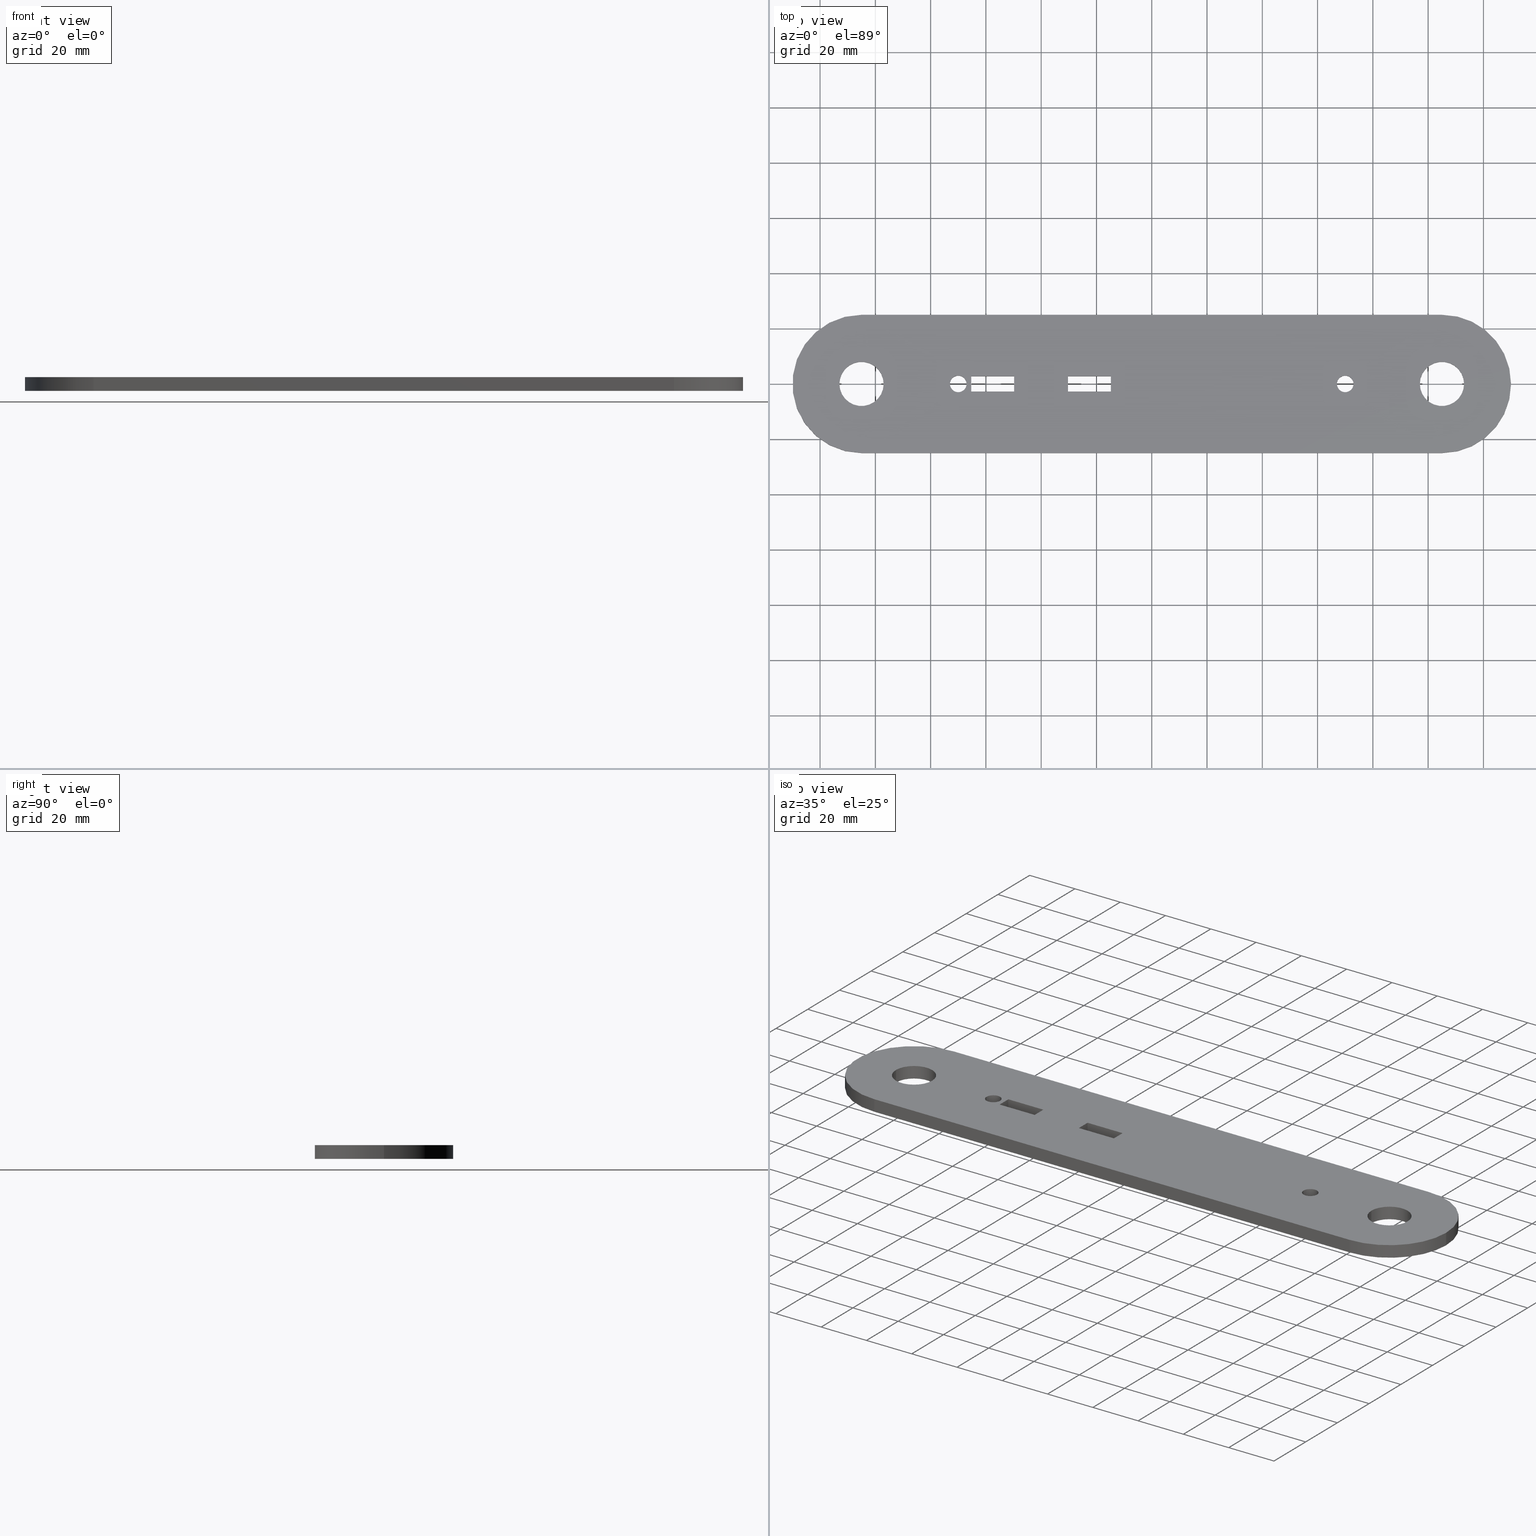
[diagram: canonical four-view strip — front | top / right | iso, engineering-drawing reading convention]
A machine part, canonical four-view strip (front | top / right | iso — engineering-drawing reading convention). The complete STEP part file that produces these views, byte-faithful:
ISO-10303-21;
HEADER;
FILE_DESCRIPTION (( 'STEP AP203' ),
    '1' );
FILE_NAME ('3927-55-10_REV_.step',
    '2026-02-22T20:40:41',
    ( '' ),
    ( '' ),
    'SwSTEP 2.0',
    'SolidWorks 2025',
    '' );
FILE_SCHEMA (( 'CONFIG_CONTROL_DESIGN' ));
ENDSEC;

DATA;
#1 = PERSON_AND_ORGANIZATION ( #477, #213 ) ;
#2 = CARTESIAN_POINT ( 'NONE',  ( -112.9999999999999858, 9.797174393178841435E-16, -5.000000000000000000 ) ) ;
#3 = EDGE_CURVE ( 'NONE', #608, #346, #713, .T. ) ;
#4 = AXIS2_PLACEMENT_3D ( 'NONE', #198, #385, #831 ) ;
#5 = ORIENTED_EDGE ( 'NONE', *, *, #736, .T. ) ;
#6 = APPLICATION_PROTOCOL_DEFINITION ( 'international standard', 'config_control_design', 1994, #58 ) ;
#7 = CIRCLE ( 'NONE', #648, 3.000000000000002665 ) ;
#8 = VECTOR ( 'NONE', #13, 1000.000000000000000 ) ;
#9 = LINE ( 'NONE', #656, #22 ) ;
#10 = LOCAL_TIME ( 7, 40, 41.00000000000000000, #172 ) ;
#11 = ADVANCED_FACE ( 'NONE', ( #57, #126, #342, #535, #64, #783, #836 ), #641, .F. ) ;
#12 = VERTEX_POINT ( 'NONE', #840 ) ;
#13 = DIRECTION ( 'NONE',  ( 1.000000000000000000, 1.817329355785226926E-16, 0.000000000000000000 ) ) ;
#14 = FACE_OUTER_BOUND ( 'NONE', #701, .T. ) ;
#15 = ORIENTED_EDGE ( 'NONE', *, *, #465, .T. ) ;
#16 = DIRECTION ( 'NONE',  ( 0.000000000000000000, 0.000000000000000000, 1.000000000000000000 ) ) ;
#17 = DIRECTION ( 'NONE',  ( 1.000000000000000000, 0.000000000000000000, 0.000000000000000000 ) ) ;
#18 = EDGE_LOOP ( 'NONE', ( #74, #272 ) ) ;
#19 = EDGE_LOOP ( 'NONE', ( #311, #85, #637, #142 ) ) ;
#20 = DIRECTION ( 'NONE',  ( 0.000000000000000000, 0.000000000000000000, 1.000000000000000000 ) ) ;
#21 = AXIS2_PLACEMENT_3D ( 'NONE', #695, #320, #313 ) ;
#22 = VECTOR ( 'NONE', #205, 1000.000000000000000 ) ;
#23 = EDGE_CURVE ( 'NONE', #406, #346, #163, .T. ) ;
#24 = DIRECTION ( 'NONE',  ( 1.000000000000000000, 0.000000000000000000, -0.000000000000000000 ) ) ;
#25 = EDGE_LOOP ( 'NONE', ( #546, #688, #211, #280 ) ) ;
#26 = CALENDAR_DATE ( 2026, 23, 2 ) ;
#27 = DIRECTION ( 'NONE',  ( 1.000000000000000000, 0.000000000000000000, 0.000000000000000000 ) ) ;
#28 = DIRECTION ( 'NONE',  ( 1.000000000000000000, 0.000000000000000000, 0.000000000000000000 ) ) ;
#29 = EDGE_LOOP ( 'NONE', ( #353, #709, #150, #506 ) ) ;
#30 = PERSON_AND_ORGANIZATION_ROLE ( 'classification_officer' ) ;
#31 = DIRECTION ( 'NONE',  ( 1.000000000000000000, 0.000000000000000000, 0.000000000000000000 ) ) ;
#32 = CARTESIAN_POINT ( 'NONE',  ( -30.29999999999999361, -2.749999999999998668, 0.000000000000000000 ) ) ;
#33 = EDGE_CURVE ( 'NONE', #829, #69, #796, .T. ) ;
#34 = EDGE_LOOP ( 'NONE', ( #291, #379, #304, #665 ) ) ;
#35 = FACE_BOUND ( 'NONE', #754, .T. ) ;
#36 = AXIS2_PLACEMENT_3D ( 'NONE', #193, #779, #199 ) ;
#37 = LINE ( 'NONE', #549, #536 ) ;
#38 = AXIS2_PLACEMENT_3D ( 'NONE', #97, #20, #106 ) ;
#39 = ORIENTED_EDGE ( 'NONE', *, *, #575, .T. ) ;
#40 = CC_DESIGN_DATE_AND_TIME_ASSIGNMENT ( #260, #138, ( #818 ) ) ;
#41 = CARTESIAN_POINT ( 'NONE',  ( 104.9999999999999858, 3.857637417314161584E-14, -5.000000000000000000 ) ) ;
#42 = PLANE ( 'NONE',  #50 ) ;
#43 = ORIENTED_EDGE ( 'NONE', *, *, #314, .T. ) ;
#44 = LINE ( 'NONE', #833, #634 ) ;
#45 = EDGE_CURVE ( 'NONE', #740, #184, #63, .T. ) ;
#46 = CARTESIAN_POINT ( 'NONE',  ( -65.29999999999999716, -2.749999999999998224, 0.000000000000000000 ) ) ;
#47 = CARTESIAN_POINT ( 'NONE',  ( -49.79999999999999716, 2.750000000000001332, 0.000000000000000000 ) ) ;
#48 = DIRECTION ( 'NONE',  ( -0.000000000000000000, -0.000000000000000000, -1.000000000000000000 ) ) ;
#49 = EDGE_CURVE ( 'NONE', #595, #448, #433, .T. ) ;
#50 = AXIS2_PLACEMENT_3D ( 'NONE', #482, #417, #94 ) ;
#51 = AXIS2_PLACEMENT_3D ( 'NONE', #140, #734, #408 ) ;
#52 = VERTEX_POINT ( 'NONE', #233 ) ;
#53 = FACE_OUTER_BOUND ( 'NONE', #34, .T. ) ;
#54 = DIRECTION ( 'NONE',  ( 0.000000000000000000, 0.000000000000000000, 1.000000000000000000 ) ) ;
#55 = LINE ( 'NONE', #47, #594 ) ;
#56 = CARTESIAN_POINT ( 'NONE',  ( 104.9999999999999858, 3.857637417314161584E-14, 0.000000000000000000 ) ) ;
#57 = FACE_BOUND ( 'NONE', #774, .T. ) ;
#58 = APPLICATION_CONTEXT ( 'configuration controlled 3d designs of mechanical parts and assemblies' ) ;
#59 = ADVANCED_FACE ( 'NONE', ( #430 ), #42, .F. ) ;
#60 = ORIENTED_EDGE ( 'NONE', *, *, #427, .F. ) ;
#61 = CYLINDRICAL_SURFACE ( 'NONE', #334, 3.000000000000002665 ) ;
#62 = CARTESIAN_POINT ( 'NONE',  ( -30.29999999999999361, -2.749999999999998668, -5.000000000000000000 ) ) ;
#63 = CIRCLE ( 'NONE', #418, 8.000000000000007105 ) ;
#64 = FACE_BOUND ( 'NONE', #803, .T. ) ;
#65 = AXIS2_PLACEMENT_3D ( 'NONE', #372, #127, #384 ) ;
#66 = ORIENTED_EDGE ( 'NONE', *, *, #310, .T. ) ;
#67 = CARTESIAN_POINT ( 'NONE',  ( -96.99999999999997158, 0.000000000000000000, -5.000000000000000000 ) ) ;
#68 = CARTESIAN_POINT ( 'NONE',  ( -104.9999999999999858, -25.00000000000004263, 0.000000000000000000 ) ) ;
#69 = VERTEX_POINT ( 'NONE', #491 ) ;
#70 = VERTEX_POINT ( 'NONE', #752 ) ;
#71 = CALENDAR_DATE ( 2026, 23, 2 ) ;
#72 = DIRECTION ( 'NONE',  ( -0.000000000000000000, -0.000000000000000000, 1.000000000000000000 ) ) ;
#73 = EDGE_CURVE ( 'NONE', #696, #759, #37, .T. ) ;
#74 = ORIENTED_EDGE ( 'NONE', *, *, #236, .T. ) ;
#75 =( LENGTH_UNIT ( ) NAMED_UNIT ( * ) SI_UNIT ( .MILLI., .METRE. ) );
#76 = DIRECTION ( 'NONE',  ( -0.000000000000000000, -0.000000000000000000, -1.000000000000000000 ) ) ;
#77 = VECTOR ( 'NONE', #513, 1000.000000000000000 ) ;
#78 = AXIS2_PLACEMENT_3D ( 'NONE', #273, #264, #586 ) ;
#79 = LOCAL_TIME ( 7, 40, 41.00000000000000000, #325 ) ;
#80 = CARTESIAN_POINT ( 'NONE',  ( 72.99999999999998579, 0.000000000000000000, -5.000000000000000000 ) ) ;
#81 = ORIENTED_EDGE ( 'NONE', *, *, #326, .F. ) ;
#82 = DATE_AND_TIME ( #71, #826 ) ;
#83 = CARTESIAN_POINT ( 'NONE',  ( -69.99999999999998579, 0.000000000000000000, -5.000000000000000000 ) ) ;
#84 = ORIENTED_EDGE ( 'NONE', *, *, #523, .T. ) ;
#85 = ORIENTED_EDGE ( 'NONE', *, *, #660, .F. ) ;
#86 = ADVANCED_FACE ( 'NONE', ( #230 ), #98, .T. ) ;
#87 = DIRECTION ( 'NONE',  ( 0.000000000000000000, 1.000000000000000000, 0.000000000000000000 ) ) ;
#88 = DIRECTION ( 'NONE',  ( -0.000000000000000000, -0.000000000000000000, 1.000000000000000000 ) ) ;
#89 = ORIENTED_EDGE ( 'NONE', *, *, #705, .T. ) ;
#90 = CALENDAR_DATE ( 2026, 23, 2 ) ;
#91 = FACE_BOUND ( 'NONE', #668, .T. ) ;
#92 = AXIS2_PLACEMENT_3D ( 'NONE', #739, #544, #540 ) ;
#93 = VECTOR ( 'NONE', #666, 1000.000000000000000 ) ;
#94 = DIRECTION ( 'NONE',  ( 0.000000000000000000, -0.000000000000000000, 1.000000000000000000 ) ) ;
#95 = LOCAL_TIME ( 7, 40, 41.00000000000000000, #609 ) ;
#96 = ORIENTED_EDGE ( 'NONE', *, *, #660, .T. ) ;
#97 = CARTESIAN_POINT ( 'NONE',  ( 69.99999999999998579, 0.000000000000000000, 0.000000000000000000 ) ) ;
#98 = PLANE ( 'NONE',  #527 ) ;
#99 = EDGE_CURVE ( 'NONE', #158, #131, #730, .T. ) ;
#100 = ORIENTED_EDGE ( 'NONE', *, *, #402, .F. ) ;
#101 = DATE_AND_TIME ( #26, #95 ) ;
#102 = DIRECTION ( 'NONE',  ( -1.000000000000000000, -1.817329355785226926E-16, 0.000000000000000000 ) ) ;
#103 = CARTESIAN_POINT ( 'NONE',  ( -104.9999999999999858, 0.000000000000000000, 0.000000000000000000 ) ) ;
#104 = EDGE_CURVE ( 'NONE', #244, #515, #672, .T. ) ;
#105 = ORIENTED_EDGE ( 'NONE', *, *, #502, .F. ) ;
#106 = DIRECTION ( 'NONE',  ( 1.000000000000000000, 0.000000000000000000, 0.000000000000000000 ) ) ;
#107 = AXIS2_PLACEMENT_3D ( 'NONE', #521, #843, #145 ) ;
#108 = DIRECTION ( 'NONE',  ( -1.000000000000000000, -2.797941090285172713E-17, 0.000000000000000000 ) ) ;
#109 = VECTOR ( 'NONE', #182, 1000.000000000000000 ) ;
#110 = ORIENTED_EDGE ( 'NONE', *, *, #209, .F. ) ;
#111 = CARTESIAN_POINT ( 'NONE',  ( -30.29999999999999361, -2.749999999999998668, 0.000000000000000000 ) ) ;
#112 = DIRECTION ( 'NONE',  ( 1.000000000000000000, 2.797941090285172713E-17, 0.000000000000000000 ) ) ;
#113 = DIRECTION ( 'NONE',  ( -1.000000000000000000, -1.817329355785226926E-16, -0.000000000000000000 ) ) ;
#114 = CARTESIAN_POINT ( 'NONE',  ( -104.9999999999999858, 25.00000000000004263, -5.000000000000000000 ) ) ;
#115 = APPLICATION_CONTEXT ( 'configuration controlled 3d designs of mechanical parts and assemblies' ) ;
#116 = ORIENTED_EDGE ( 'NONE', *, *, #45, .T. ) ;
#117 = FACE_OUTER_BOUND ( 'NONE', #456, .T. ) ;
#118 = DIRECTION ( 'NONE',  ( 1.000000000000000000, 0.000000000000000000, 0.000000000000000000 ) ) ;
#119 = CIRCLE ( 'NONE', #593, 8.000000000000007105 ) ;
#120 = AXIS2_PLACEMENT_3D ( 'NONE', #670, #429, #102 ) ;
#121 = ADVANCED_BREP_SHAPE_REPRESENTATION ( '3927-55-10_REV_', ( #686, #674 ), #298 ) ;
#122 = ORIENTED_EDGE ( 'NONE', *, *, #209, .T. ) ;
#123 = PLANE ( 'NONE',  #474 ) ;
#124 = FACE_OUTER_BOUND ( 'NONE', #597, .T. ) ;
#125 = ADVANCED_FACE ( 'NONE', ( #802 ), #611, .F. ) ;
#126 = FACE_BOUND ( 'NONE', #18, .T. ) ;
#127 = DIRECTION ( 'NONE',  ( -1.000000000000000000, 0.000000000000000000, 0.000000000000000000 ) ) ;
#128 = DIRECTION ( 'NONE',  ( -0.000000000000000000, -1.000000000000000000, -0.000000000000000000 ) ) ;
#129 = CC_DESIGN_DATE_AND_TIME_ASSIGNMENT ( #101, #283, ( #689 ) ) ;
#130 = ORIENTED_EDGE ( 'NONE', *, *, #23, .T. ) ;
#131 = VERTEX_POINT ( 'NONE', #355 ) ;
#132 = DIRECTION ( 'NONE',  ( 1.000000000000000000, 0.000000000000000000, 0.000000000000000000 ) ) ;
#133 = CARTESIAN_POINT ( 'NONE',  ( -65.29999999999999716, -2.749999999999998224, 0.000000000000000000 ) ) ;
#134 = AXIS2_PLACEMENT_3D ( 'NONE', #583, #699, #118 ) ;
#135 = ORIENTED_EDGE ( 'NONE', *, *, #465, .F. ) ;
#136 = VECTOR ( 'NONE', #827, 1000.000000000000000 ) ;
#137 = VERTEX_POINT ( 'NONE', #556 ) ;
#138 = DATE_TIME_ROLE ( 'creation_date' ) ;
#139 = EDGE_CURVE ( 'NONE', #608, #651, #646, .T. ) ;
#140 = CARTESIAN_POINT ( 'NONE',  ( -104.9999999999999858, 0.000000000000000000, -5.000000000000000000 ) ) ;
#141 = VERTEX_POINT ( 'NONE', #303 ) ;
#142 = ORIENTED_EDGE ( 'NONE', *, *, #599, .T. ) ;
#143 = COORDINATED_UNIVERSAL_TIME_OFFSET ( 10, 0, .AHEAD. ) ;
#144 = EDGE_CURVE ( 'NONE', #696, #557, #819, .T. ) ;
#145 = DIRECTION ( 'NONE',  ( 1.000000000000000000, 0.000000000000000000, 0.000000000000000000 ) ) ;
#146 = EDGE_LOOP ( 'NONE', ( #161, #300, #631, #96 ) ) ;
#147 = CARTESIAN_POINT ( 'NONE',  ( 112.9999999999999858, 3.857637417314161584E-14, 0.000000000000000000 ) ) ;
#148 = CARTESIAN_POINT ( 'NONE',  ( 104.9999999999999858, 3.857637417314161584E-14, -5.000000000000000000 ) ) ;
#149 = VECTOR ( 'NONE', #76, 1000.000000000000000 ) ;
#150 = ORIENTED_EDGE ( 'NONE', *, *, #640, .F. ) ;
#151 =( NAMED_UNIT ( * ) PLANE_ANGLE_UNIT ( ) SI_UNIT ( $, .RADIAN. ) );
#152 = AXIS2_PLACEMENT_3D ( 'NONE', #148, #202, #531 ) ;
#153 = CARTESIAN_POINT ( 'NONE',  ( -30.29999999999999361, 2.750000000000001332, 0.000000000000000000 ) ) ;
#154 = ADVANCED_FACE ( 'NONE', ( #224 ), #235, .F. ) ;
#155 = ORIENTED_EDGE ( 'NONE', *, *, #410, .F. ) ;
#156 = DIRECTION ( 'NONE',  ( 1.000000000000000000, 0.000000000000000000, 0.000000000000000000 ) ) ;
#157 = ORIENTED_EDGE ( 'NONE', *, *, #287, .T. ) ;
#158 = VERTEX_POINT ( 'NONE', #744 ) ;
#159 = FACE_OUTER_BOUND ( 'NONE', #259, .T. ) ;
#160 = LINE ( 'NONE', #497, #281 ) ;
#161 = ORIENTED_EDGE ( 'NONE', *, *, #243, .T. ) ;
#162 = FACE_OUTER_BOUND ( 'NONE', #812, .T. ) ;
#163 = CIRCLE ( 'NONE', #717, 3.000000000000002665 ) ;
#164 = EDGE_CURVE ( 'NONE', #759, #328, #160, .T. ) ;
#165 = AXIS2_PLACEMENT_3D ( 'NONE', #111, #572, #308 ) ;
#166 = CARTESIAN_POINT ( 'NONE',  ( -104.9999999999999858, -25.00000000000004263, -5.000000000000000000 ) ) ;
#167 = VERTEX_POINT ( 'NONE', #166 ) ;
#168 = APPROVAL_STATUS ( 'not_yet_approved' ) ;
#169 = CARTESIAN_POINT ( 'NONE',  ( -65.29999999999999716, -2.749999999999998224, -5.000000000000000000 ) ) ;
#170 = DIRECTION ( 'NONE',  ( 1.817329355785226926E-16, -1.000000000000000000, 0.000000000000000000 ) ) ;
#171 = VERTEX_POINT ( 'NONE', #615 ) ;
#172 = COORDINATED_UNIVERSAL_TIME_OFFSET ( 10, 0, .AHEAD. ) ;
#173 = DIRECTION ( 'NONE',  ( 0.000000000000000000, 0.000000000000000000, 1.000000000000000000 ) ) ;
#174 = CARTESIAN_POINT ( 'NONE',  ( -65.29999999999999716, 2.750000000000000888, 0.000000000000000000 ) ) ;
#175 = ORIENTED_EDGE ( 'NONE', *, *, #790, .T. ) ;
#176 = LINE ( 'NONE', #761, #254 ) ;
#177 = AXIS2_PLACEMENT_3D ( 'NONE', #682, #485, #28 ) ;
#178 = LINE ( 'NONE', #423, #659 ) ;
#179 = APPROVAL_PERSON_ORGANIZATION ( #781, #580, #716 ) ;
#180 = EDGE_CURVE ( 'NONE', #343, #574, #178, .T. ) ;
#181 = ORIENTED_EDGE ( 'NONE', *, *, #356, .F. ) ;
#182 = DIRECTION ( 'NONE',  ( 0.000000000000000000, 0.000000000000000000, 1.000000000000000000 ) ) ;
#183 = CARTESIAN_POINT ( 'NONE',  ( -30.29999999999999361, 2.750000000000001332, -5.000000000000000000 ) ) ;
#184 = VERTEX_POINT ( 'NONE', #366 ) ;
#185 = DIRECTION ( 'NONE',  ( -0.000000000000000000, -0.000000000000000000, -1.000000000000000000 ) ) ;
#186 = DIRECTION ( 'NONE',  ( 0.000000000000000000, 0.000000000000000000, 1.000000000000000000 ) ) ;
#187 = ORIENTED_EDGE ( 'NONE', *, *, #575, .F. ) ;
#188 = PLANE ( 'NONE',  #758 ) ;
#189 = EDGE_CURVE ( 'NONE', #12, #52, #678, .T. ) ;
#190 = LINE ( 'NONE', #62, #550 ) ;
#191 = CIRCLE ( 'NONE', #373, 8.000000000000007105 ) ;
#192 = VECTOR ( 'NONE', #468, 1000.000000000000000 ) ;
#193 = CARTESIAN_POINT ( 'NONE',  ( -69.99999999999998579, 0.000000000000000000, 0.000000000000000000 ) ) ;
#194 = DIRECTION ( 'NONE',  ( 0.000000000000000000, 0.000000000000000000, 1.000000000000000000 ) ) ;
#195 = DIRECTION ( 'NONE',  ( 0.000000000000000000, 0.000000000000000000, 1.000000000000000000 ) ) ;
#196 = EDGE_CURVE ( 'NONE', #806, #392, #517, .T. ) ;
#197 = VERTEX_POINT ( 'NONE', #834 ) ;
#198 = CARTESIAN_POINT ( 'NONE',  ( -104.9999999999999858, 0.000000000000000000, -5.000000000000000000 ) ) ;
#199 = DIRECTION ( 'NONE',  ( 1.000000000000000000, 0.000000000000000000, 0.000000000000000000 ) ) ;
#200 = EDGE_CURVE ( 'NONE', #399, #137, #359, .T. ) ;
#201 = APPROVAL_STATUS ( 'not_yet_approved' ) ;
#202 = DIRECTION ( 'NONE',  ( 0.000000000000000000, 0.000000000000000000, 1.000000000000000000 ) ) ;
#203 = VECTOR ( 'NONE', #252, 1000.000000000000000 ) ;
#204 = ORIENTED_EDGE ( 'NONE', *, *, #625, .T. ) ;
#205 = DIRECTION ( 'NONE',  ( 0.000000000000000000, 0.000000000000000000, 1.000000000000000000 ) ) ;
#206 = LINE ( 'NONE', #393, #551 ) ;
#207 = CARTESIAN_POINT ( 'NONE',  ( -104.9999999999999858, 0.000000000000000000, -5.000000000000000000 ) ) ;
#208 = LINE ( 'NONE', #533, #241 ) ;
#209 = EDGE_CURVE ( 'NONE', #798, #841, #191, .T. ) ;
#210 = VECTOR ( 'NONE', #128, 1000.000000000000000 ) ;
#211 = ORIENTED_EDGE ( 'NONE', *, *, #364, .F. ) ;
#212 = VECTOR ( 'NONE', #72, 1000.000000000000000 ) ;
#213 = ORGANIZATION ( 'UNSPECIFIED', 'UNSPECIFIED', '' ) ;
#214 = CARTESIAN_POINT ( 'NONE',  ( -30.29999999999999361, -2.749999999999998668, 0.000000000000000000 ) ) ;
#215 = ORIENTED_EDGE ( 'NONE', *, *, #49, .F. ) ;
#216 = APPROVAL ( #168, 'UNSPECIFIED' ) ;
#217 = ORIENTED_EDGE ( 'NONE', *, *, #479, .T. ) ;
#218 = DATE_AND_TIME ( #733, #405 ) ;
#219 = DIRECTION ( 'NONE',  ( -0.000000000000000000, -0.000000000000000000, 1.000000000000000000 ) ) ;
#220 = DIRECTION ( 'NONE',  ( 0.000000000000000000, 0.000000000000000000, 1.000000000000000000 ) ) ;
#221 = EDGE_CURVE ( 'NONE', #737, #595, #769, .T. ) ;
#222 = ORIENTED_EDGE ( 'NONE', *, *, #824, .T. ) ;
#223 = CARTESIAN_POINT ( 'NONE',  ( 104.9999999999999858, 3.857637417314161584E-14, 0.000000000000000000 ) ) ;
#224 = FACE_OUTER_BOUND ( 'NONE', #19, .T. ) ;
#225 = ORIENTED_EDGE ( 'NONE', *, *, #377, .T. ) ;
#226 = PERSON_AND_ORGANIZATION_ROLE ( 'creator' ) ;
#227 = CIRCLE ( 'NONE', #700, 25.00000000000004974 ) ;
#228 = CARTESIAN_POINT ( 'NONE',  ( -72.99999999999998579, 3.673940397442076138E-16, -5.000000000000000000 ) ) ;
#229 = CIRCLE ( 'NONE', #786, 3.000000000000002665 ) ;
#230 = FACE_OUTER_BOUND ( 'NONE', #471, .T. ) ;
#231 = ORIENTED_EDGE ( 'NONE', *, *, #671, .T. ) ;
#232 = CARTESIAN_POINT ( 'NONE',  ( -65.29999999999999716, 2.750000000000000888, 0.000000000000000000 ) ) ;
#233 = CARTESIAN_POINT ( 'NONE',  ( -14.80000000000000071, -2.749999999999998668, -5.000000000000000000 ) ) ;
#234 = FACE_BOUND ( 'NONE', #276, .T. ) ;
#235 = PLANE ( 'NONE',  #321 ) ;
#236 = EDGE_CURVE ( 'NONE', #651, #608, #499, .T. ) ;
#237 = EDGE_LOOP ( 'NONE', ( #225, #566 ) ) ;
#238 = FACE_OUTER_BOUND ( 'NONE', #667, .T. ) ;
#239 = VECTOR ( 'NONE', #88, 1000.000000000000000 ) ;
#240 = LINE ( 'NONE', #762, #266 ) ;
#241 = VECTOR ( 'NONE', #473, 1000.000000000000000 ) ;
#242 = APPROVAL_PERSON_ORGANIZATION ( #669, #216, #292 ) ;
#243 = EDGE_CURVE ( 'NONE', #574, #413, #446, .T. ) ;
#244 = VERTEX_POINT ( 'NONE', #133 ) ;
#245 = CARTESIAN_POINT ( 'NONE',  ( -14.80000000000000071, -2.749999999999998668, 0.000000000000000000 ) ) ;
#246 = DIRECTION ( 'NONE',  ( 1.000000000000000000, 0.000000000000000000, 0.000000000000000000 ) ) ;
#247 = LINE ( 'NONE', #837, #487 ) ;
#248 = DIRECTION ( 'NONE',  ( 0.000000000000000000, 0.000000000000000000, 1.000000000000000000 ) ) ;
#249 = ORIENTED_EDGE ( 'NONE', *, *, #45, .F. ) ;
#250 = DIRECTION ( 'NONE',  ( -0.000000000000000000, -0.000000000000000000, -1.000000000000000000 ) ) ;
#251 = EDGE_CURVE ( 'NONE', #443, #562, #822, .T. ) ;
#252 = DIRECTION ( 'NONE',  ( 0.000000000000000000, 0.000000000000000000, 1.000000000000000000 ) ) ;
#253 = AXIS2_PLACEMENT_3D ( 'NONE', #103, #349, #426 ) ;
#254 = VECTOR ( 'NONE', #767, 1000.000000000000000 ) ;
#255 = EDGE_LOOP ( 'NONE', ( #428, #363, #721, #204 ) ) ;
#256 = CARTESIAN_POINT ( 'NONE',  ( -104.9999999999999858, 25.00000000000004263, -5.000000000000000000 ) ) ;
#257 = DIRECTION ( 'NONE',  ( 1.000000000000000000, 0.000000000000000000, 0.000000000000000000 ) ) ;
#258 = DIRECTION ( 'NONE',  ( 1.000000000000000000, 0.000000000000000000, 0.000000000000000000 ) ) ;
#259 = EDGE_LOOP ( 'NONE', ( #788, #383, #222, #664 ) ) ;
#260 = DATE_AND_TIME ( #453, #79 ) ;
#261 = CARTESIAN_POINT ( 'NONE',  ( -112.9999999999999858, 9.797174393178845379E-16, -5.000000000000000000 ) ) ;
#262 = ORIENTED_EDGE ( 'NONE', *, *, #838, .T. ) ;
#263 = ORIENTED_EDGE ( 'NONE', *, *, #290, .T. ) ;
#264 = DIRECTION ( 'NONE',  ( 0.000000000000000000, 0.000000000000000000, 1.000000000000000000 ) ) ;
#265 = LINE ( 'NONE', #153, #835 ) ;
#266 = VECTOR ( 'NONE', #48, 1000.000000000000000 ) ;
#267 = VECTOR ( 'NONE', #777, 1000.000000000000000 ) ;
#268 = AXIS2_PLACEMENT_3D ( 'NONE', #332, #592, #548 ) ;
#269 = ORIENTED_EDGE ( 'NONE', *, *, #741, .T. ) ;
#270 = MECHANICAL_CONTEXT ( 'NONE', #115, 'mechanical' ) ;
#271 = CYLINDRICAL_SURFACE ( 'NONE', #51, 8.000000000000007105 ) ;
#272 = ORIENTED_EDGE ( 'NONE', *, *, #139, .T. ) ;
#273 = CARTESIAN_POINT ( 'NONE',  ( 104.9999999999999858, 3.857637417314161584E-14, -5.000000000000000000 ) ) ;
#274 = EDGE_CURVE ( 'NONE', #737, #167, #445, .T. ) ;
#275 = CARTESIAN_POINT ( 'NONE',  ( 104.9999999999999858, 3.857637417314161584E-14, -5.000000000000000000 ) ) ;
#276 = EDGE_LOOP ( 'NONE', ( #732, #387 ) ) ;
#277 = PERSON_AND_ORGANIZATION_ROLE ( 'creator' ) ;
#278 = CC_DESIGN_PERSON_AND_ORGANIZATION_ASSIGNMENT ( #458, #529, ( #559 ) ) ;
#279 = DIRECTION ( 'NONE',  ( 0.000000000000000000, 0.000000000000000000, 1.000000000000000000 ) ) ;
#280 = ORIENTED_EDGE ( 'NONE', *, *, #189, .F. ) ;
#281 = VECTOR ( 'NONE', #756, 1000.000000000000000 ) ;
#282 = ORIENTED_EDGE ( 'NONE', *, *, #49, .T. ) ;
#283 = DATE_TIME_ROLE ( 'classification_date' ) ;
#284 = VECTOR ( 'NONE', #87, 1000.000000000000000 ) ;
#285 = DIRECTION ( 'NONE',  ( 1.000000000000000000, 0.000000000000000000, 0.000000000000000000 ) ) ;
#286 = CARTESIAN_POINT ( 'NONE',  ( 104.9999999999999858, 3.857637417314161584E-14, -5.000000000000000000 ) ) ;
#287 = EDGE_CURVE ( 'NONE', #184, #740, #823, .T. ) ;
#288 = ORIENTED_EDGE ( 'NONE', *, *, #274, .T. ) ;
#289 = LINE ( 'NONE', #232, #322 ) ;
#290 = EDGE_CURVE ( 'NONE', #436, #70, #450, .T. ) ;
#291 = ORIENTED_EDGE ( 'NONE', *, *, #189, .T. ) ;
#292 = APPROVAL_ROLE ( '' ) ;
#293 = CYLINDRICAL_SURFACE ( 'NONE', #607, 25.00000000000004974 ) ;
#294 = DIRECTION ( 'NONE',  ( 1.000000000000000000, 0.000000000000000000, 0.000000000000000000 ) ) ;
#295 = ORIENTED_EDGE ( 'NONE', *, *, #345, .T. ) ;
#296 = CIRCLE ( 'NONE', #770, 3.000000000000002665 ) ;
#297 = DIRECTION ( 'NONE',  ( 0.000000000000000000, 0.000000000000000000, 1.000000000000000000 ) ) ;
#298 =( GEOMETRIC_REPRESENTATION_CONTEXT ( 3 ) GLOBAL_UNCERTAINTY_ASSIGNED_CONTEXT ( ( #398 ) ) GLOBAL_UNIT_ASSIGNED_CONTEXT ( ( #75, #151, #400 ) ) REPRESENTATION_CONTEXT ( 'NONE', 'WORKASPACE' ) );
#299 = DIRECTION ( 'NONE',  ( 0.000000000000000000, 1.000000000000000000, 0.000000000000000000 ) ) ;
#300 = ORIENTED_EDGE ( 'NONE', *, *, #778, .F. ) ;
#301 = LINE ( 'NONE', #755, #93 ) ;
#302 = ADVANCED_FACE ( 'NONE', ( #124 ), #639, .F. ) ;
#303 = CARTESIAN_POINT ( 'NONE',  ( 104.9999999999999858, 25.00000000000008171, -5.000000000000000000 ) ) ;
#304 = ORIENTED_EDGE ( 'NONE', *, *, #196, .F. ) ;
#305 = LINE ( 'NONE', #633, #109 ) ;
#306 = DIRECTION ( 'NONE',  ( 1.000000000000000000, 0.000000000000000000, 0.000000000000000000 ) ) ;
#307 = ORIENTED_EDGE ( 'NONE', *, *, #753, .F. ) ;
#308 = DIRECTION ( 'NONE',  ( 0.000000000000000000, -0.000000000000000000, -1.000000000000000000 ) ) ;
#309 = LINE ( 'NONE', #505, #486 ) ;
#310 = EDGE_CURVE ( 'NONE', #740, #798, #828, .T. ) ;
#311 = ORIENTED_EDGE ( 'NONE', *, *, #180, .T. ) ;
#312 = DIRECTION ( 'NONE',  ( 1.000000000000000000, 0.000000000000000000, 0.000000000000000000 ) ) ;
#313 = DIRECTION ( 'NONE',  ( 1.000000000000000000, 0.000000000000000000, 0.000000000000000000 ) ) ;
#314 = EDGE_CURVE ( 'NONE', #557, #328, #240, .T. ) ;
#315 = CARTESIAN_POINT ( 'NONE',  ( 104.9999999999999858, -25.00000000000000355, 0.000000000000000000 ) ) ;
#316 = CARTESIAN_POINT ( 'NONE',  ( 104.9999999999999858, 3.857637417314161584E-14, -5.000000000000000000 ) ) ;
#317 = EDGE_LOOP ( 'NONE', ( #488, #780, #60, #89 ) ) ;
#318 = ORIENTED_EDGE ( 'NONE', *, *, #345, .F. ) ;
#319 = DIRECTION ( 'NONE',  ( -0.000000000000000000, -0.000000000000000000, 1.000000000000000000 ) ) ;
#320 = DIRECTION ( 'NONE',  ( 0.000000000000000000, 0.000000000000000000, 1.000000000000000000 ) ) ;
#321 = AXIS2_PLACEMENT_3D ( 'NONE', #174, #685, #108 ) ;
#322 = VECTOR ( 'NONE', #604, 1000.000000000000000 ) ;
#323 = ORIENTED_EDGE ( 'NONE', *, *, #290, .F. ) ;
#324 = ORIENTED_EDGE ( 'NONE', *, *, #437, .F. ) ;
#325 = COORDINATED_UNIVERSAL_TIME_OFFSET ( 10, 0, .AHEAD. ) ;
#326 = EDGE_CURVE ( 'NONE', #197, #69, #309, .T. ) ;
#327 = DIRECTION ( 'NONE',  ( 0.000000000000000000, 0.000000000000000000, 1.000000000000000000 ) ) ;
#328 = VERTEX_POINT ( 'NONE', #183 ) ;
#329 = PERSON_AND_ORGANIZATION ( #477, #213 ) ;
#330 = CARTESIAN_POINT ( 'NONE',  ( 72.99999999999998579, 0.000000000000000000, 0.000000000000000000 ) ) ;
#331 = CARTESIAN_POINT ( 'NONE',  ( 96.99999999999997158, 3.955609161245950334E-14, 0.000000000000000000 ) ) ;
#332 = CARTESIAN_POINT ( 'NONE',  ( -65.29999999999999716, -2.749999999999998224, 0.000000000000000000 ) ) ;
#333 = CIRCLE ( 'NONE', #809, 25.00000000000004974 ) ;
#334 = AXIS2_PLACEMENT_3D ( 'NONE', #380, #319, #516 ) ;
#335 = EDGE_CURVE ( 'NONE', #131, #158, #119, .T. ) ;
#336 = ORIENTED_EDGE ( 'NONE', *, *, #768, .T. ) ;
#337 = CARTESIAN_POINT ( 'NONE',  ( -49.79999999999999716, 2.750000000000001332, 0.000000000000000000 ) ) ;
#338 = EDGE_CURVE ( 'NONE', #436, #141, #227, .T. ) ;
#339 = ORIENTED_EDGE ( 'NONE', *, *, #523, .F. ) ;
#340 = CARTESIAN_POINT ( 'NONE',  ( -72.99999999999998579, 3.673940397442076138E-16, 0.000000000000000000 ) ) ;
#341 = FACE_OUTER_BOUND ( 'NONE', #692, .T. ) ;
#342 = FACE_BOUND ( 'NONE', #29, .T. ) ;
#343 = VERTEX_POINT ( 'NONE', #643 ) ;
#344 = CARTESIAN_POINT ( 'NONE',  ( -65.29999999999999716, -2.749999999999998224, -5.000000000000000000 ) ) ;
#345 = EDGE_CURVE ( 'NONE', #675, #70, #333, .T. ) ;
#346 = VERTEX_POINT ( 'NONE', #439 ) ;
#347 = CIRCLE ( 'NONE', #152, 25.00000000000004974 ) ;
#348 = PLANE ( 'NONE',  #374 ) ;
#349 = DIRECTION ( 'NONE',  ( 0.000000000000000000, 0.000000000000000000, 1.000000000000000000 ) ) ;
#350 = ORIENTED_EDGE ( 'NONE', *, *, #236, .F. ) ;
#351 = CARTESIAN_POINT ( 'NONE',  ( -72.99999999999998579, 3.673940397442069236E-16, -5.000000000000000000 ) ) ;
#352 = DIRECTION ( 'NONE',  ( -0.000000000000000000, -1.000000000000000000, -0.000000000000000000 ) ) ;
#353 = ORIENTED_EDGE ( 'NONE', *, *, #180, .F. ) ;
#354 = FACE_BOUND ( 'NONE', #628, .T. ) ;
#355 = CARTESIAN_POINT ( 'NONE',  ( -112.9999999999999858, 9.797174393178845379E-16, 0.000000000000000000 ) ) ;
#356 = EDGE_CURVE ( 'NONE', #244, #171, #712, .T. ) ;
#357 = ORIENTED_EDGE ( 'NONE', *, *, #369, .F. ) ;
#358 = APPROVAL_DATE_TIME ( #807, #216 ) ;
#359 = CIRCLE ( 'NONE', #21, 8.000000000000007105 ) ;
#360 = CARTESIAN_POINT ( 'NONE',  ( -49.79999999999999716, 2.750000000000001332, -5.000000000000000000 ) ) ;
#361 = CIRCLE ( 'NONE', #797, 25.00000000000004974 ) ;
#362 = DIRECTION ( 'NONE',  ( 1.000000000000000000, 0.000000000000000000, 0.000000000000000000 ) ) ;
#363 = ORIENTED_EDGE ( 'NONE', *, *, #814, .T. ) ;
#364 = EDGE_CURVE ( 'NONE', #52, #759, #190, .T. ) ;
#365 = CARTESIAN_POINT ( 'NONE',  ( 72.99999999999998579, 0.000000000000000000, -5.000000000000000000 ) ) ;
#366 = CARTESIAN_POINT ( 'NONE',  ( 112.9999999999999858, 3.857637417314161584E-14, -5.000000000000000000 ) ) ;
#367 = ORIENTED_EDGE ( 'NONE', *, *, #274, .F. ) ;
#368 = CARTESIAN_POINT ( 'NONE',  ( -30.29999999999999361, -2.749999999999998668, -5.000000000000000000 ) ) ;
#369 = EDGE_CURVE ( 'NONE', #197, #619, #296, .T. ) ;
#370 = DIRECTION ( 'NONE',  ( 0.000000000000000000, 0.000000000000000000, 1.000000000000000000 ) ) ;
#371 = ORIENTED_EDGE ( 'NONE', *, *, #164, .T. ) ;
#372 = CARTESIAN_POINT ( 'NONE',  ( -30.29999999999999361, -2.749999999999998668, 0.000000000000000000 ) ) ;
#373 = AXIS2_PLACEMENT_3D ( 'NONE', #570, #773, #257 ) ;
#374 = AXIS2_PLACEMENT_3D ( 'NONE', #684, #297, #555 ) ;
#375 = DIRECTION ( 'NONE',  ( -0.000000000000000000, -0.000000000000000000, 1.000000000000000000 ) ) ;
#376 = VECTOR ( 'NONE', #185, 1000.000000000000000 ) ;
#377 = EDGE_CURVE ( 'NONE', #137, #399, #403, .T. ) ;
#378 = PRODUCT_DEFINITION_FORMATION_WITH_SPECIFIED_SOURCE ( 'ANY', '', #559, .NOT_KNOWN. ) ;
#379 = ORIENTED_EDGE ( 'NONE', *, *, #705, .F. ) ;
#380 = CARTESIAN_POINT ( 'NONE',  ( 69.99999999999998579, 0.000000000000000000, -5.000000000000000000 ) ) ;
#381 = CARTESIAN_POINT ( 'NONE',  ( 130.0000000000000284, 3.857637417314161584E-14, -5.000000000000000000 ) ) ;
#382 = ORIENTED_EDGE ( 'NONE', *, *, #144, .F. ) ;
#383 = ORIENTED_EDGE ( 'NONE', *, *, #671, .F. ) ;
#384 = DIRECTION ( 'NONE',  ( 0.000000000000000000, 0.000000000000000000, 1.000000000000000000 ) ) ;
#385 = DIRECTION ( 'NONE',  ( 0.000000000000000000, 0.000000000000000000, 1.000000000000000000 ) ) ;
#386 = EDGE_LOOP ( 'NONE', ( #424, #39, #391, #81 ) ) ;
#387 = ORIENTED_EDGE ( 'NONE', *, *, #545, .F. ) ;
#388 = DIRECTION ( 'NONE',  ( -0.000000000000000000, -1.000000000000000000, -0.000000000000000000 ) ) ;
#389 = VECTOR ( 'NONE', #815, 1000.000000000000000 ) ;
#390 = VECTOR ( 'NONE', #16, 1000.000000000000000 ) ;
#391 = ORIENTED_EDGE ( 'NONE', *, *, #33, .T. ) ;
#392 = VERTEX_POINT ( 'NONE', #466 ) ;
#393 = CARTESIAN_POINT ( 'NONE',  ( -65.29999999999999716, 2.750000000000000888, 0.000000000000000000 ) ) ;
#394 = EDGE_CURVE ( 'NONE', #806, #12, #470, .T. ) ;
#395 = DIRECTION ( 'NONE',  ( -1.000000000000000000, -0.000000000000000000, -0.000000000000000000 ) ) ;
#396 = CARTESIAN_POINT ( 'NONE',  ( -49.79999999999999716, -2.749999999999998668, -5.000000000000000000 ) ) ;
#397 = ADVANCED_FACE ( 'NONE', ( #341 ), #653, .F. ) ;
#398 = UNCERTAINTY_MEASURE_WITH_UNIT (LENGTH_MEASURE( 1.000000000000000082E-05 ), #75, 'distance_accuracy_value', 'NONE');
#399 = VERTEX_POINT ( 'NONE', #261 ) ;
#400 =( NAMED_UNIT ( * ) SI_UNIT ( $, .STERADIAN. ) SOLID_ANGLE_UNIT ( ) );
#401 = DIRECTION ( 'NONE',  ( 0.000000000000000000, 0.000000000000000000, 1.000000000000000000 ) ) ;
#402 = EDGE_CURVE ( 'NONE', #557, #806, #265, .T. ) ;
#403 = CIRCLE ( 'NONE', #511, 8.000000000000007105 ) ;
#404 = AXIS2_PLACEMENT_3D ( 'NONE', #742, #219, #425 ) ;
#405 = LOCAL_TIME ( 7, 40, 41.00000000000000000, #143 ) ;
#406 = VERTEX_POINT ( 'NONE', #330 ) ;
#407 = CYLINDRICAL_SURFACE ( 'NONE', #78, 8.000000000000007105 ) ;
#408 = DIRECTION ( 'NONE',  ( 1.000000000000000000, 0.000000000000000000, 0.000000000000000000 ) ) ;
#409 = EDGE_LOOP ( 'NONE', ( #589, #800, #262, #832 ) ) ;
#410 = EDGE_CURVE ( 'NONE', #841, #798, #582, .T. ) ;
#411 = ORIENTED_EDGE ( 'NONE', *, *, #640, .T. ) ;
#412 = DIRECTION ( 'NONE',  ( -0.000000000000000000, -0.000000000000000000, 1.000000000000000000 ) ) ;
#413 = VERTEX_POINT ( 'NONE', #396 ) ;
#414 = ORIENTED_EDGE ( 'NONE', *, *, #469, .F. ) ;
#415 = APPROVAL_DATE_TIME ( #218, #580 ) ;
#416 = PLANE ( 'NONE',  #120 ) ;
#417 = DIRECTION ( 'NONE',  ( 0.000000000000000000, 1.000000000000000000, 0.000000000000000000 ) ) ;
#418 = AXIS2_PLACEMENT_3D ( 'NONE', #286, #805, #294 ) ;
#419 = ORIENTED_EDGE ( 'NONE', *, *, #99, .F. ) ;
#420 = VECTOR ( 'NONE', #434, 1000.000000000000000 ) ;
#421 = APPROVAL_PERSON_ORGANIZATION ( #1, #495, #776 ) ;
#422 = DIRECTION ( 'NONE',  ( 0.000000000000000000, 0.000000000000000000, 1.000000000000000000 ) ) ;
#423 = CARTESIAN_POINT ( 'NONE',  ( -65.29999999999999716, 2.750000000000000888, -5.000000000000000000 ) ) ;
#424 = ORIENTED_EDGE ( 'NONE', *, *, #479, .F. ) ;
#425 = DIRECTION ( 'NONE',  ( 1.000000000000000000, 0.000000000000000000, 0.000000000000000000 ) ) ;
#426 = DIRECTION ( 'NONE',  ( 1.000000000000000000, 0.000000000000000000, 0.000000000000000000 ) ) ;
#427 = EDGE_CURVE ( 'NONE', #392, #696, #791, .T. ) ;
#428 = ORIENTED_EDGE ( 'NONE', *, *, #104, .T. ) ;
#429 = DIRECTION ( 'NONE',  ( -1.817329355785226926E-16, 1.000000000000000000, 0.000000000000000000 ) ) ;
#430 = FACE_OUTER_BOUND ( 'NONE', #816, .T. ) ;
#431 = CC_DESIGN_PERSON_AND_ORGANIZATION_ASSIGNMENT ( #493, #226, ( #378 ) ) ;
#432 = ORIENTED_EDGE ( 'NONE', *, *, #144, .T. ) ;
#433 = CIRCLE ( 'NONE', #743, 25.00000000000004974 ) ;
#434 = DIRECTION ( 'NONE',  ( 0.000000000000000000, 0.000000000000000000, 1.000000000000000000 ) ) ;
#435 = AXIS2_PLACEMENT_3D ( 'NONE', #41, #173, #285 ) ;
#436 = VERTEX_POINT ( 'NONE', #719 ) ;
#437 = EDGE_CURVE ( 'NONE', #706, #675, #9, .T. ) ;
#438 = DIRECTION ( 'NONE',  ( 0.000000000000000000, 0.000000000000000000, -1.000000000000000000 ) ) ;
#439 = CARTESIAN_POINT ( 'NONE',  ( 66.99999999999997158, 3.673940397442076138E-16, 0.000000000000000000 ) ) ;
#440 = ORIENTED_EDGE ( 'NONE', *, *, #838, .F. ) ;
#441 = CARTESIAN_POINT ( 'NONE',  ( -49.79999999999999716, -2.749999999999998668, 0.000000000000000000 ) ) ;
#442 = CARTESIAN_POINT ( 'NONE',  ( 104.9999999999999858, 3.857637417314161584E-14, -5.000000000000000000 ) ) ;
#443 = VERTEX_POINT ( 'NONE', #337 ) ;
#444 = CARTESIAN_POINT ( 'NONE',  ( 104.9999999999999858, -25.00000000000000355, -5.000000000000000000 ) ) ;
#445 = CIRCLE ( 'NONE', #4, 25.00000000000004974 ) ;
#446 = LINE ( 'NONE', #708, #687 ) ;
#447 = CC_DESIGN_APPROVAL ( #216, ( #689 ) ) ;
#448 = VERTEX_POINT ( 'NONE', #68 ) ;
#449 = DIRECTION ( 'NONE',  ( 0.000000000000000000, 0.000000000000000000, -1.000000000000000000 ) ) ;
#450 = LINE ( 'NONE', #381, #673 ) ;
#451 = ADVANCED_FACE ( 'NONE', ( #590 ), #271, .F. ) ;
#452 = ORIENTED_EDGE ( 'NONE', *, *, #790, .F. ) ;
#453 = CALENDAR_DATE ( 2026, 23, 2 ) ;
#454 = DIRECTION ( 'NONE',  ( 1.000000000000000000, 0.000000000000000000, 0.000000000000000000 ) ) ;
#455 = PRODUCT_RELATED_PRODUCT_CATEGORY ( 'detail', '', ( #559 ) ) ;
#456 = EDGE_LOOP ( 'NONE', ( #514, #623, #683, #414 ) ) ;
#457 = EDGE_LOOP ( 'NONE', ( #371, #820, #382, #537 ) ) ;
#458 = PERSON_AND_ORGANIZATION ( #477, #213 ) ;
#459 = CARTESIAN_POINT ( 'NONE',  ( -14.80000000000000071, 2.750000000000001332, 0.000000000000000000 ) ) ;
#460 = AXIS2_PLACEMENT_3D ( 'NONE', #462, #605, #24 ) ;
#461 = CC_DESIGN_APPROVAL ( #580, ( #378 ) ) ;
#462 = CARTESIAN_POINT ( 'NONE',  ( -104.9999999999999858, 0.000000000000000000, -5.000000000000000000 ) ) ;
#463 = ORIENTED_EDGE ( 'NONE', *, *, #310, .F. ) ;
#464 = COORDINATED_UNIVERSAL_TIME_OFFSET ( 10, 0, .AHEAD. ) ;
#465 = EDGE_CURVE ( 'NONE', #706, #436, #347, .T. ) ;
#466 = CARTESIAN_POINT ( 'NONE',  ( -14.80000000000000071, -2.749999999999998668, 0.000000000000000000 ) ) ;
#467 = VERTEX_POINT ( 'NONE', #723 ) ;
#468 = DIRECTION ( 'NONE',  ( -1.000000000000000000, -1.817329355785226926E-16, -0.000000000000000000 ) ) ;
#469 = EDGE_CURVE ( 'NONE', #651, #406, #649, .T. ) ;
#470 = LINE ( 'NONE', #459, #149 ) ;
#471 = EDGE_LOOP ( 'NONE', ( #105, #307, #175, #524 ) ) ;
#472 = APPLICATION_PROTOCOL_DEFINITION ( 'international standard', 'config_control_design', 1994, #115 ) ;
#473 = DIRECTION ( 'NONE',  ( 1.000000000000000000, 1.817329355785226926E-16, 0.000000000000000000 ) ) ;
#474 = AXIS2_PLACEMENT_3D ( 'NONE', #245, #821, #449 ) ;
#475 = EDGE_LOOP ( 'NONE', ( #463, #616, #269, #763 ) ) ;
#476 = DIRECTION ( 'NONE',  ( 0.000000000000000000, 0.000000000000000000, 1.000000000000000000 ) ) ;
#477 = PERSON ( 'UNSPECIFIED', 'UNSPECIFIED', 'UNSPECIFIED', ('UNSPECIFIED'), ('UNSPECIFIED'), ('UNSPECIFIED') ) ;
#478 = ORIENTED_EDGE ( 'NONE', *, *, #200, .F. ) ;
#479 = EDGE_CURVE ( 'NONE', #619, #197, #229, .T. ) ;
#480 = ORIENTED_EDGE ( 'NONE', *, *, #625, .F. ) ;
#481 = DIRECTION ( 'NONE',  ( 1.000000000000000000, 0.000000000000000000, 0.000000000000000000 ) ) ;
#482 = CARTESIAN_POINT ( 'NONE',  ( -30.29999999999999361, 2.750000000000001332, 0.000000000000000000 ) ) ;
#483 = EDGE_LOOP ( 'NONE', ( #323, #520, #231, #339 ) ) ;
#484 = DIRECTION ( 'NONE',  ( 0.000000000000000000, 0.000000000000000000, 1.000000000000000000 ) ) ;
#485 = DIRECTION ( 'NONE',  ( -0.000000000000000000, -0.000000000000000000, 1.000000000000000000 ) ) ;
#486 = VECTOR ( 'NONE', #375, 1000.000000000000000 ) ;
#487 = VECTOR ( 'NONE', #113, 1000.000000000000000 ) ;
#488 = ORIENTED_EDGE ( 'NONE', *, *, #364, .T. ) ;
#489 = FACE_OUTER_BOUND ( 'NONE', #750, .T. ) ;
#490 = ADVANCED_FACE ( 'NONE', ( #14 ), #793, .T. ) ;
#491 = CARTESIAN_POINT ( 'NONE',  ( -66.99999999999997158, 0.000000000000000000, 0.000000000000000000 ) ) ;
#492 = ORIENTED_EDGE ( 'NONE', *, *, #469, .T. ) ;
#493 = PERSON_AND_ORGANIZATION ( #477, #213 ) ;
#494 = CYLINDRICAL_SURFACE ( 'NONE', #404, 3.000000000000002665 ) ;
#495 = APPROVAL ( #662, 'UNSPECIFIED' ) ;
#496 = DIRECTION ( 'NONE',  ( 0.000000000000000000, 0.000000000000000000, 1.000000000000000000 ) ) ;
#497 = CARTESIAN_POINT ( 'NONE',  ( -30.29999999999999361, -2.749999999999998668, -5.000000000000000000 ) ) ;
#498 = EDGE_CURVE ( 'NONE', #399, #131, #782, .T. ) ;
#499 = CIRCLE ( 'NONE', #134, 3.000000000000002665 ) ;
#500 = CARTESIAN_POINT ( 'NONE',  ( 104.9999999999999858, 25.00000000000008171, -5.000000000000000000 ) ) ;
#501 = CARTESIAN_POINT ( 'NONE',  ( 96.99999999999997158, 3.955609161245950334E-14, -5.000000000000000000 ) ) ;
#502 = EDGE_CURVE ( 'NONE', #448, #675, #208, .T. ) ;
#503 = ORIENTED_EDGE ( 'NONE', *, *, #196, .T. ) ;
#504 = LINE ( 'NONE', #764, #376 ) ;
#505 = CARTESIAN_POINT ( 'NONE',  ( -66.99999999999997158, 0.000000000000000000, -5.000000000000000000 ) ) ;
#506 = ORIENTED_EDGE ( 'NONE', *, *, #243, .F. ) ;
#507 = CARTESIAN_POINT ( 'NONE',  ( 96.99999999999997158, 3.955609161245950334E-14, -5.000000000000000000 ) ) ;
#508 = CARTESIAN_POINT ( 'NONE',  ( -14.80000000000000071, -2.749999999999998668, 0.000000000000000000 ) ) ;
#509 = CARTESIAN_POINT ( 'NONE',  ( 69.99999999999998579, 0.000000000000000000, 0.000000000000000000 ) ) ;
#510 = PLANE ( 'NONE',  #569 ) ;
#511 = AXIS2_PLACEMENT_3D ( 'NONE', #207, #600, #156 ) ;
#512 = AXIS2_PLACEMENT_3D ( 'NONE', #558, #422, #27 ) ;
#513 = DIRECTION ( 'NONE',  ( -0.000000000000000000, -0.000000000000000000, -1.000000000000000000 ) ) ;
#514 = ORIENTED_EDGE ( 'NONE', *, *, #139, .F. ) ;
#515 = VERTEX_POINT ( 'NONE', #658 ) ;
#516 = DIRECTION ( 'NONE',  ( 1.000000000000000000, 0.000000000000000000, 0.000000000000000000 ) ) ;
#517 = LINE ( 'NONE', #508, #267 ) ;
#518 = ADVANCED_FACE ( 'NONE', ( #729 ), #795, .F. ) ;
#519 = ORIENTED_EDGE ( 'NONE', *, *, #33, .F. ) ;
#520 = ORIENTED_EDGE ( 'NONE', *, *, #338, .T. ) ;
#521 = CARTESIAN_POINT ( 'NONE',  ( -69.99999999999998579, 0.000000000000000000, -5.000000000000000000 ) ) ;
#522 = CARTESIAN_POINT ( 'NONE',  ( 66.99999999999997158, 3.673940397442069236E-16, -5.000000000000000000 ) ) ;
#523 = EDGE_CURVE ( 'NONE', #70, #467, #361, .T. ) ;
#524 = ORIENTED_EDGE ( 'NONE', *, *, #437, .T. ) ;
#525 = LINE ( 'NONE', #67, #390 ) ;
#526 = DIRECTION ( 'NONE',  ( 1.000000000000000000, 0.000000000000000000, 0.000000000000000000 ) ) ;
#527 = AXIS2_PLACEMENT_3D ( 'NONE', #622, #170, #810 ) ;
#528 = VECTOR ( 'NONE', #395, 1000.000000000000000 ) ;
#529 = PERSON_AND_ORGANIZATION_ROLE ( 'design_owner' ) ;
#530 = CARTESIAN_POINT ( 'NONE',  ( -69.99999999999998579, 0.000000000000000000, -5.000000000000000000 ) ) ;
#531 = DIRECTION ( 'NONE',  ( 1.000000000000000000, 0.000000000000000000, 0.000000000000000000 ) ) ;
#532 = EDGE_LOOP ( 'NONE', ( #411, #181, #480, #654 ) ) ;
#533 = CARTESIAN_POINT ( 'NONE',  ( -104.9999999999999858, -25.00000000000004263, 0.000000000000000000 ) ) ;
#534 = ADVANCED_FACE ( 'NONE', ( #813 ), #293, .T. ) ;
#535 = FACE_BOUND ( 'NONE', #25, .T. ) ;
#536 = VECTOR ( 'NONE', #561, 1000.000000000000000 ) ;
#537 = ORIENTED_EDGE ( 'NONE', *, *, #73, .T. ) ;
#538 = PERSON_AND_ORGANIZATION ( #477, #213 ) ;
#539 = CARTESIAN_POINT ( 'NONE',  ( -30.29999999999999361, 2.750000000000001332, 0.000000000000000000 ) ) ;
#540 = DIRECTION ( 'NONE',  ( 1.000000000000000000, 0.000000000000000000, 0.000000000000000000 ) ) ;
#541 = ORIENTED_EDGE ( 'NONE', *, *, #599, .F. ) ;
#542 = PERSON_AND_ORGANIZATION_ROLE ( 'design_supplier' ) ;
#543 = LINE ( 'NONE', #344, #702 ) ;
#544 = DIRECTION ( 'NONE',  ( 0.000000000000000000, 0.000000000000000000, 1.000000000000000000 ) ) ;
#545 = EDGE_CURVE ( 'NONE', #346, #406, #825, .T. ) ;
#546 = ORIENTED_EDGE ( 'NONE', *, *, #768, .F. ) ;
#547 = PERSON_AND_ORGANIZATION ( #477, #213 ) ;
#548 = DIRECTION ( 'NONE',  ( 1.000000000000000000, -2.797941090285172713E-17, 0.000000000000000000 ) ) ;
#549 = CARTESIAN_POINT ( 'NONE',  ( -30.29999999999999361, -2.749999999999998668, 0.000000000000000000 ) ) ;
#550 = VECTOR ( 'NONE', #564, 1000.000000000000000 ) ;
#551 = VECTOR ( 'NONE', #652, 1000.000000000000000 ) ;
#552 = ORIENTED_EDGE ( 'NONE', *, *, #727, .F. ) ;
#553 = CC_DESIGN_SECURITY_CLASSIFICATION ( #689, ( #378 ) ) ;
#554 = ADVANCED_FACE ( 'NONE', ( #738 ), #494, .F. ) ;
#555 = DIRECTION ( 'NONE',  ( 1.000000000000000000, 0.000000000000000000, -0.000000000000000000 ) ) ;
#556 = CARTESIAN_POINT ( 'NONE',  ( -96.99999999999997158, 0.000000000000000000, -5.000000000000000000 ) ) ;
#557 = VERTEX_POINT ( 'NONE', #539 ) ;
#558 = CARTESIAN_POINT ( 'NONE',  ( -104.9999999999999858, 0.000000000000000000, -5.000000000000000000 ) ) ;
#559 = PRODUCT ( '3927-55-10_REV_', '3927-55-10_REV_', '', ( #270 ) ) ;
#560 = ADVANCED_FACE ( 'NONE', ( #159 ), #416, .T. ) ;
#561 = DIRECTION ( 'NONE',  ( -0.000000000000000000, -0.000000000000000000, -1.000000000000000000 ) ) ;
#562 = VERTEX_POINT ( 'NONE', #808 ) ;
#563 = DIRECTION ( 'NONE',  ( -0.000000000000000000, -0.000000000000000000, -1.000000000000000000 ) ) ;
#564 = DIRECTION ( 'NONE',  ( -1.000000000000000000, -0.000000000000000000, -0.000000000000000000 ) ) ;
#565 = CC_DESIGN_PERSON_AND_ORGANIZATION_ASSIGNMENT ( #538, #542, ( #378 ) ) ;
#566 = ORIENTED_EDGE ( 'NONE', *, *, #200, .T. ) ;
#567 = AXIS2_PLACEMENT_3D ( 'NONE', #316, #370, #704 ) ;
#568 = CARTESIAN_POINT ( 'NONE',  ( -30.29999999999999361, 2.750000000000001332, -5.000000000000000000 ) ) ;
#569 = AXIS2_PLACEMENT_3D ( 'NONE', #579, #624, #194 ) ;
#570 = CARTESIAN_POINT ( 'NONE',  ( 104.9999999999999858, 3.857637417314161584E-14, 0.000000000000000000 ) ) ;
#571 = ORIENTED_EDGE ( 'NONE', *, *, #335, .T. ) ;
#572 = DIRECTION ( 'NONE',  ( 0.000000000000000000, -1.000000000000000000, 0.000000000000000000 ) ) ;
#573 = DIRECTION ( 'NONE',  ( 1.000000000000000000, 0.000000000000000000, 0.000000000000000000 ) ) ;
#574 = VERTEX_POINT ( 'NONE', #360 ) ;
#575 = EDGE_CURVE ( 'NONE', #619, #829, #681, .T. ) ;
#576 = FACE_OUTER_BOUND ( 'NONE', #317, .T. ) ;
#577 = CARTESIAN_POINT ( 'NONE',  ( -104.9999999999999858, 0.000000000000000000, 0.000000000000000000 ) ) ;
#578 = ORIENTED_EDGE ( 'NONE', *, *, #3, .F. ) ;
#579 = CARTESIAN_POINT ( 'NONE',  ( -65.29999999999999716, -2.749999999999998224, 0.000000000000000000 ) ) ;
#580 = APPROVAL ( #201, 'UNSPECIFIED' ) ;
#581 = VECTOR ( 'NONE', #195, 1000.000000000000000 ) ;
#582 = CIRCLE ( 'NONE', #718, 8.000000000000007105 ) ;
#583 = CARTESIAN_POINT ( 'NONE',  ( 69.99999999999998579, 0.000000000000000000, -5.000000000000000000 ) ) ;
#584 = ORIENTED_EDGE ( 'NONE', *, *, #338, .F. ) ;
#585 = EDGE_LOOP ( 'NONE', ( #367, #735, #584, #135, #452 ) ) ;
#586 = DIRECTION ( 'NONE',  ( 1.000000000000000000, 0.000000000000000000, 0.000000000000000000 ) ) ;
#587 = DIRECTION ( 'NONE',  ( 1.000000000000000000, 0.000000000000000000, 0.000000000000000000 ) ) ;
#588 = ADVANCED_FACE ( 'NONE', ( #354, #234, #617, #614, #35, #91, #162 ), #348, .T. ) ;
#589 = ORIENTED_EDGE ( 'NONE', *, *, #498, .F. ) ;
#590 = FACE_OUTER_BOUND ( 'NONE', #409, .T. ) ;
#591 = ADVANCED_FACE ( 'NONE', ( #751 ), #610, .T. ) ;
#592 = DIRECTION ( 'NONE',  ( -2.797941090285172713E-17, -1.000000000000000000, 0.000000000000000000 ) ) ;
#593 = AXIS2_PLACEMENT_3D ( 'NONE', #577, #186, #306 ) ;
#594 = VECTOR ( 'NONE', #563, 1000.000000000000000 ) ;
#595 = VERTEX_POINT ( 'NONE', #621 ) ;
#596 = DIRECTION ( 'NONE',  ( 1.000000000000000000, 0.000000000000000000, 0.000000000000000000 ) ) ;
#597 = EDGE_LOOP ( 'NONE', ( #478, #711, #571, #440 ) ) ;
#598 = APPROVAL_DATE_TIME ( #82, #495 ) ;
#599 = EDGE_CURVE ( 'NONE', #515, #343, #289, .T. ) ;
#600 = DIRECTION ( 'NONE',  ( 0.000000000000000000, 0.000000000000000000, 1.000000000000000000 ) ) ;
#601 = ORIENTED_EDGE ( 'NONE', *, *, #369, .T. ) ;
#602 = ORIENTED_EDGE ( 'NONE', *, *, #356, .T. ) ;
#603 = CC_DESIGN_PERSON_AND_ORGANIZATION_ASSIGNMENT ( #547, #30, ( #689 ) ) ;
#604 = DIRECTION ( 'NONE',  ( -0.000000000000000000, -0.000000000000000000, -1.000000000000000000 ) ) ;
#605 = DIRECTION ( 'NONE',  ( 0.000000000000000000, 0.000000000000000000, 1.000000000000000000 ) ) ;
#606 = CLOSED_SHELL ( 'NONE', ( #554, #693, #612, #302, #490, #591, #560, #534, #86, #11, #588, #451, #799, #731, #698, #647, #59, #710, #518, #677, #154, #125, #397 ) ) ;
#607 = AXIS2_PLACEMENT_3D ( 'NONE', #817, #496, #31 ) ;
#608 = VERTEX_POINT ( 'NONE', #676 ) ;
#609 = COORDINATED_UNIVERSAL_TIME_OFFSET ( 10, 0, .AHEAD. ) ;
#610 = CYLINDRICAL_SURFACE ( 'NONE', #512, 25.00000000000004974 ) ;
#611 = CYLINDRICAL_SURFACE ( 'NONE', #177, 3.000000000000002665 ) ;
#612 = ADVANCED_FACE ( 'NONE', ( #489 ), #748, .F. ) ;
#613 = ORIENTED_EDGE ( 'NONE', *, *, #753, .T. ) ;
#614 = FACE_BOUND ( 'NONE', #724, .T. ) ;
#615 = CARTESIAN_POINT ( 'NONE',  ( -65.29999999999999716, -2.749999999999998224, -5.000000000000000000 ) ) ;
#616 = ORIENTED_EDGE ( 'NONE', *, *, #287, .F. ) ;
#617 = FACE_BOUND ( 'NONE', #255, .T. ) ;
#618 = AXIS2_PLACEMENT_3D ( 'NONE', #275, #401, #663 ) ;
#619 = VERTEX_POINT ( 'NONE', #228 ) ;
#620 = SHAPE_DEFINITION_REPRESENTATION ( #626, #121 ) ;
#621 = CARTESIAN_POINT ( 'NONE',  ( -104.9999999999999858, 25.00000000000004263, 0.000000000000000000 ) ) ;
#622 = CARTESIAN_POINT ( 'NONE',  ( -104.9999999999999858, -25.00000000000004263, -5.000000000000000000 ) ) ;
#623 = ORIENTED_EDGE ( 'NONE', *, *, #3, .T. ) ;
#624 = DIRECTION ( 'NONE',  ( -1.000000000000000000, 0.000000000000000000, 0.000000000000000000 ) ) ;
#625 = EDGE_CURVE ( 'NONE', #562, #244, #301, .T. ) ;
#626 = PRODUCT_DEFINITION_SHAPE ( 'NONE', 'NONE',  #818 ) ;
#627 = CARTESIAN_POINT ( 'NONE',  ( -14.80000000000000071, -2.749999999999998668, -5.000000000000000000 ) ) ;
#628 = EDGE_LOOP ( 'NONE', ( #552, #519 ) ) ;
#629 = LINE ( 'NONE', #568, #136 ) ;
#630 = DIRECTION ( 'NONE',  ( 0.000000000000000000, 0.000000000000000000, 1.000000000000000000 ) ) ;
#631 = ORIENTED_EDGE ( 'NONE', *, *, #251, .F. ) ;
#632 = VECTOR ( 'NONE', #299, 1000.000000000000000 ) ;
#633 = CARTESIAN_POINT ( 'NONE',  ( -104.9999999999999858, -25.00000000000004263, -5.000000000000000000 ) ) ;
#634 = VECTOR ( 'NONE', #250, 1000.000000000000000 ) ;
#635 = DIRECTION ( 'NONE',  ( 0.000000000000000000, 0.000000000000000000, 1.000000000000000000 ) ) ;
#636 = EDGE_CURVE ( 'NONE', #171, #343, #801, .T. ) ;
#637 = ORIENTED_EDGE ( 'NONE', *, *, #814, .F. ) ;
#638 = CARTESIAN_POINT ( 'NONE',  ( -30.29999999999999361, -2.749999999999998668, 0.000000000000000000 ) ) ;
#639 = CYLINDRICAL_SURFACE ( 'NONE', #745, 8.000000000000007105 ) ;
#640 = EDGE_CURVE ( 'NONE', #413, #171, #543, .T. ) ;
#641 = PLANE ( 'NONE',  #460 ) ;
#642 = FACE_OUTER_BOUND ( 'NONE', #146, .T. ) ;
#643 = CARTESIAN_POINT ( 'NONE',  ( -65.29999999999999716, 2.750000000000000888, -5.000000000000000000 ) ) ;
#644 = ORIENTED_EDGE ( 'NONE', *, *, #326, .T. ) ;
#645 = LINE ( 'NONE', #725, #8 ) ;
#646 = CIRCLE ( 'NONE', #92, 3.000000000000002665 ) ;
#647 = ADVANCED_FACE ( 'NONE', ( #53 ), #123, .F. ) ;
#648 = AXIS2_PLACEMENT_3D ( 'NONE', #694, #707, #703 ) ;
#649 = LINE ( 'NONE', #80, #212 ) ;
#650 = ORIENTED_EDGE ( 'NONE', *, *, #427, .T. ) ;
#651 = VERTEX_POINT ( 'NONE', #365 ) ;
#652 = DIRECTION ( 'NONE',  ( 1.000000000000000000, 2.797941090285172713E-17, 0.000000000000000000 ) ) ;
#653 = CYLINDRICAL_SURFACE ( 'NONE', #107, 3.000000000000002665 ) ;
#654 = ORIENTED_EDGE ( 'NONE', *, *, #778, .T. ) ;
#655 = DIRECTION ( 'NONE',  ( 0.000000000000000000, 0.000000000000000000, 1.000000000000000000 ) ) ;
#656 = CARTESIAN_POINT ( 'NONE',  ( 104.9999999999999858, -25.00000000000000355, -5.000000000000000000 ) ) ;
#657 = ORIENTED_EDGE ( 'NONE', *, *, #104, .F. ) ;
#658 = CARTESIAN_POINT ( 'NONE',  ( -65.29999999999999716, 2.750000000000000888, 0.000000000000000000 ) ) ;
#659 = VECTOR ( 'NONE', #112, 1000.000000000000000 ) ;
#660 = EDGE_CURVE ( 'NONE', #443, #574, #55, .T. ) ;
#661 = EDGE_LOOP ( 'NONE', ( #578, #350, #492, #130 ) ) ;
#662 = APPROVAL_STATUS ( 'not_yet_approved' ) ;
#663 = DIRECTION ( 'NONE',  ( 1.000000000000000000, 0.000000000000000000, 0.000000000000000000 ) ) ;
#664 = ORIENTED_EDGE ( 'NONE', *, *, #221, .T. ) ;
#665 = ORIENTED_EDGE ( 'NONE', *, *, #394, .T. ) ;
#666 = DIRECTION ( 'NONE',  ( -1.000000000000000000, 2.797941090285172713E-17, -0.000000000000000000 ) ) ;
#667 = EDGE_LOOP ( 'NONE', ( #784, #541, #657, #602 ) ) ;
#668 = EDGE_LOOP ( 'NONE', ( #419, #844 ) ) ;
#669 = PERSON_AND_ORGANIZATION ( #477, #213 ) ;
#670 = CARTESIAN_POINT ( 'NONE',  ( -104.9999999999999858, 25.00000000000004263, -5.000000000000000000 ) ) ;
#671 = EDGE_CURVE ( 'NONE', #141, #467, #697, .T. ) ;
#672 = LINE ( 'NONE', #691, #632 ) ;
#673 = VECTOR ( 'NONE', #248, 1000.000000000000000 ) ;
#674 = AXIS2_PLACEMENT_3D ( 'NONE', #792, #655, #132 ) ;
#675 = VERTEX_POINT ( 'NONE', #315 ) ;
#676 = CARTESIAN_POINT ( 'NONE',  ( 66.99999999999997158, 3.673940397442076138E-16, -5.000000000000000000 ) ) ;
#677 = ADVANCED_FACE ( 'NONE', ( #642 ), #188, .F. ) ;
#678 = LINE ( 'NONE', #627, #757 ) ;
#679 = ORIENTED_EDGE ( 'NONE', *, *, #402, .T. ) ;
#680 = SECURITY_CLASSIFICATION_LEVEL ( 'unclassified' ) ;
#681 = LINE ( 'NONE', #351, #811 ) ;
#682 = CARTESIAN_POINT ( 'NONE',  ( 69.99999999999998579, 0.000000000000000000, -5.000000000000000000 ) ) ;
#683 = ORIENTED_EDGE ( 'NONE', *, *, #545, .T. ) ;
#684 = CARTESIAN_POINT ( 'NONE',  ( -104.9999999999999858, 0.000000000000000000, 0.000000000000000000 ) ) ;
#685 = DIRECTION ( 'NONE',  ( -2.797941090285172713E-17, 1.000000000000000000, 0.000000000000000000 ) ) ;
#686 = MANIFOLD_SOLID_BREP ( 'Cut-Extrude2', #606 ) ;
#687 = VECTOR ( 'NONE', #388, 1000.000000000000000 ) ;
#688 = ORIENTED_EDGE ( 'NONE', *, *, #164, .F. ) ;
#689 = SECURITY_CLASSIFICATION ( '', '', #680 ) ;
#690 = FACE_OUTER_BOUND ( 'NONE', #457, .T. ) ;
#691 = CARTESIAN_POINT ( 'NONE',  ( -65.29999999999999716, -2.749999999999998224, 0.000000000000000000 ) ) ;
#692 = EDGE_LOOP ( 'NONE', ( #187, #357, #644, #747 ) ) ;
#693 = ADVANCED_FACE ( 'NONE', ( #117 ), #61, .F. ) ;
#694 = CARTESIAN_POINT ( 'NONE',  ( -69.99999999999998579, 0.000000000000000000, 0.000000000000000000 ) ) ;
#695 = CARTESIAN_POINT ( 'NONE',  ( -104.9999999999999858, 0.000000000000000000, -5.000000000000000000 ) ) ;
#696 = VERTEX_POINT ( 'NONE', #638 ) ;
#697 = LINE ( 'NONE', #500, #420 ) ;
#698 = ADVANCED_FACE ( 'NONE', ( #576 ), #772, .F. ) ;
#699 = DIRECTION ( 'NONE',  ( 0.000000000000000000, 0.000000000000000000, 1.000000000000000000 ) ) ;
#700 = AXIS2_PLACEMENT_3D ( 'NONE', #442, #635, #454 ) ;
#701 = EDGE_LOOP ( 'NONE', ( #15, #263, #318, #324 ) ) ;
#702 = VECTOR ( 'NONE', #804, 1000.000000000000000 ) ;
#703 = DIRECTION ( 'NONE',  ( 1.000000000000000000, 0.000000000000000000, 0.000000000000000000 ) ) ;
#704 = DIRECTION ( 'NONE',  ( 1.000000000000000000, 0.000000000000000000, 0.000000000000000000 ) ) ;
#705 = EDGE_CURVE ( 'NONE', #392, #52, #44, .T. ) ;
#706 = VERTEX_POINT ( 'NONE', #444 ) ;
#707 = DIRECTION ( 'NONE',  ( 0.000000000000000000, 0.000000000000000000, 1.000000000000000000 ) ) ;
#708 = CARTESIAN_POINT ( 'NONE',  ( -49.79999999999999716, -2.749999999999998668, -5.000000000000000000 ) ) ;
#709 = ORIENTED_EDGE ( 'NONE', *, *, #636, .F. ) ;
#710 = ADVANCED_FACE ( 'NONE', ( #238 ), #510, .F. ) ;
#711 = ORIENTED_EDGE ( 'NONE', *, *, #498, .T. ) ;
#712 = LINE ( 'NONE', #46, #77 ) ;
#713 = LINE ( 'NONE', #522, #239 ) ;
#714 = CC_DESIGN_PERSON_AND_ORGANIZATION_ASSIGNMENT ( #329, #277, ( #818 ) ) ;
#715 = DESIGN_CONTEXT ( 'detailed design', #58, 'design' ) ;
#716 = APPROVAL_ROLE ( '' ) ;
#717 = AXIS2_PLACEMENT_3D ( 'NONE', #509, #771, #258 ) ;
#718 = AXIS2_PLACEMENT_3D ( 'NONE', #787, #726, #596 ) ;
#719 = CARTESIAN_POINT ( 'NONE',  ( 130.0000000000000284, 3.857637417314161584E-14, -5.000000000000000000 ) ) ;
#720 = ORIENTED_EDGE ( 'NONE', *, *, #502, .T. ) ;
#721 = ORIENTED_EDGE ( 'NONE', *, *, #251, .T. ) ;
#722 = CARTESIAN_POINT ( 'NONE',  ( -14.80000000000000782, 2.750000000000001332, 0.000000000000000000 ) ) ;
#723 = CARTESIAN_POINT ( 'NONE',  ( 104.9999999999999858, 25.00000000000008171, 0.000000000000000000 ) ) ;
#724 = EDGE_LOOP ( 'NONE', ( #432, #679, #503, #650 ) ) ;
#725 = CARTESIAN_POINT ( 'NONE',  ( -104.9999999999999858, -25.00000000000004263, -5.000000000000000000 ) ) ;
#726 = DIRECTION ( 'NONE',  ( 0.000000000000000000, 0.000000000000000000, 1.000000000000000000 ) ) ;
#727 = EDGE_CURVE ( 'NONE', #69, #829, #7, .T. ) ;
#728 = ORIENTED_EDGE ( 'NONE', *, *, #741, .F. ) ;
#729 = FACE_OUTER_BOUND ( 'NONE', #532, .T. ) ;
#730 = CIRCLE ( 'NONE', #253, 8.000000000000007105 ) ;
#731 = ADVANCED_FACE ( 'NONE', ( #690 ), #830, .F. ) ;
#732 = ORIENTED_EDGE ( 'NONE', *, *, #23, .F. ) ;
#733 = CALENDAR_DATE ( 2026, 23, 2 ) ;
#734 = DIRECTION ( 'NONE',  ( 0.000000000000000000, 0.000000000000000000, 1.000000000000000000 ) ) ;
#735 = ORIENTED_EDGE ( 'NONE', *, *, #824, .F. ) ;
#736 = EDGE_CURVE ( 'NONE', #467, #595, #247, .T. ) ;
#737 = VERTEX_POINT ( 'NONE', #256 ) ;
#738 = FACE_OUTER_BOUND ( 'NONE', #386, .T. ) ;
#739 = CARTESIAN_POINT ( 'NONE',  ( 69.99999999999998579, 0.000000000000000000, -5.000000000000000000 ) ) ;
#740 = VERTEX_POINT ( 'NONE', #507 ) ;
#741 = EDGE_CURVE ( 'NONE', #184, #841, #176, .T. ) ;
#742 = CARTESIAN_POINT ( 'NONE',  ( -69.99999999999998579, 0.000000000000000000, -5.000000000000000000 ) ) ;
#743 = AXIS2_PLACEMENT_3D ( 'NONE', #749, #220, #362 ) ;
#744 = CARTESIAN_POINT ( 'NONE',  ( -96.99999999999997158, 0.000000000000000000, 0.000000000000000000 ) ) ;
#745 = AXIS2_PLACEMENT_3D ( 'NONE', #765, #630, #246 ) ;
#746 = VECTOR ( 'NONE', #279, 1000.000000000000000 ) ;
#747 = ORIENTED_EDGE ( 'NONE', *, *, #727, .T. ) ;
#748 = CYLINDRICAL_SURFACE ( 'NONE', #435, 8.000000000000007105 ) ;
#749 = CARTESIAN_POINT ( 'NONE',  ( -104.9999999999999858, 0.000000000000000000, 0.000000000000000000 ) ) ;
#750 = EDGE_LOOP ( 'NONE', ( #249, #66, #122, #728 ) ) ;
#751 = FACE_OUTER_BOUND ( 'NONE', #766, .T. ) ;
#752 = CARTESIAN_POINT ( 'NONE',  ( 130.0000000000000284, 3.857637417314161584E-14, 0.000000000000000000 ) ) ;
#753 = EDGE_CURVE ( 'NONE', #167, #448, #305, .T. ) ;
#754 = EDGE_LOOP ( 'NONE', ( #155, #110 ) ) ;
#755 = CARTESIAN_POINT ( 'NONE',  ( -65.29999999999999716, -2.749999999999998224, 0.000000000000000000 ) ) ;
#756 = DIRECTION ( 'NONE',  ( 0.000000000000000000, 1.000000000000000000, 0.000000000000000000 ) ) ;
#757 = VECTOR ( 'NONE', #352, 1000.000000000000000 ) ;
#758 = AXIS2_PLACEMENT_3D ( 'NONE', #441, #312, #438 ) ;
#759 = VERTEX_POINT ( 'NONE', #368 ) ;
#760 = CC_DESIGN_APPROVAL ( #495, ( #818 ) ) ;
#761 = CARTESIAN_POINT ( 'NONE',  ( 112.9999999999999858, 3.857637417314161584E-14, -5.000000000000000000 ) ) ;
#762 = CARTESIAN_POINT ( 'NONE',  ( -30.29999999999999361, 2.750000000000001332, 0.000000000000000000 ) ) ;
#763 = ORIENTED_EDGE ( 'NONE', *, *, #410, .T. ) ;
#764 = CARTESIAN_POINT ( 'NONE',  ( -49.79999999999999716, -2.749999999999998668, 0.000000000000000000 ) ) ;
#765 = CARTESIAN_POINT ( 'NONE',  ( -104.9999999999999858, 0.000000000000000000, -5.000000000000000000 ) ) ;
#766 = EDGE_LOOP ( 'NONE', ( #215, #794, #288, #613 ) ) ;
#767 = DIRECTION ( 'NONE',  ( 0.000000000000000000, 0.000000000000000000, 1.000000000000000000 ) ) ;
#768 = EDGE_CURVE ( 'NONE', #328, #12, #629, .T. ) ;
#769 = LINE ( 'NONE', #114, #581 ) ;
#770 = AXIS2_PLACEMENT_3D ( 'NONE', #83, #327, #526 ) ;
#771 = DIRECTION ( 'NONE',  ( 0.000000000000000000, 0.000000000000000000, 1.000000000000000000 ) ) ;
#772 = PLANE ( 'NONE',  #165 ) ;
#773 = DIRECTION ( 'NONE',  ( 0.000000000000000000, 0.000000000000000000, 1.000000000000000000 ) ) ;
#774 = EDGE_LOOP ( 'NONE', ( #601, #217 ) ) ;
#775 = ORIENTED_EDGE ( 'NONE', *, *, #394, .F. ) ;
#776 = APPROVAL_ROLE ( '' ) ;
#777 = DIRECTION ( 'NONE',  ( -0.000000000000000000, -1.000000000000000000, -0.000000000000000000 ) ) ;
#778 = EDGE_CURVE ( 'NONE', #562, #413, #504, .T. ) ;
#779 = DIRECTION ( 'NONE',  ( 0.000000000000000000, 0.000000000000000000, 1.000000000000000000 ) ) ;
#780 = ORIENTED_EDGE ( 'NONE', *, *, #73, .F. ) ;
#781 = PERSON_AND_ORGANIZATION ( #477, #213 ) ;
#782 = LINE ( 'NONE', #2, #746 ) ;
#783 = FACE_BOUND ( 'NONE', #237, .T. ) ;
#784 = ORIENTED_EDGE ( 'NONE', *, *, #636, .T. ) ;
#785 = LINE ( 'NONE', #789, #192 ) ;
#786 = AXIS2_PLACEMENT_3D ( 'NONE', #530, #476, #587 ) ;
#787 = CARTESIAN_POINT ( 'NONE',  ( 104.9999999999999858, 3.857637417314161584E-14, 0.000000000000000000 ) ) ;
#788 = ORIENTED_EDGE ( 'NONE', *, *, #736, .F. ) ;
#789 = CARTESIAN_POINT ( 'NONE',  ( -104.9999999999999858, 25.00000000000004263, -5.000000000000000000 ) ) ;
#790 = EDGE_CURVE ( 'NONE', #167, #706, #645, .T. ) ;
#791 = LINE ( 'NONE', #214, #528 ) ;
#792 = CARTESIAN_POINT ( 'NONE',  ( 0.000000000000000000, 0.000000000000000000, 0.000000000000000000 ) ) ;
#793 = CYLINDRICAL_SURFACE ( 'NONE', #618, 25.00000000000004974 ) ;
#794 = ORIENTED_EDGE ( 'NONE', *, *, #221, .F. ) ;
#795 = PLANE ( 'NONE',  #268 ) ;
#796 = CIRCLE ( 'NONE', #36, 3.000000000000002665 ) ;
#797 = AXIS2_PLACEMENT_3D ( 'NONE', #223, #484, #481 ) ;
#798 = VERTEX_POINT ( 'NONE', #331 ) ;
#799 = ADVANCED_FACE ( 'NONE', ( #842 ), #407, .F. ) ;
#800 = ORIENTED_EDGE ( 'NONE', *, *, #377, .F. ) ;
#801 = LINE ( 'NONE', #169, #284 ) ;
#802 = FACE_OUTER_BOUND ( 'NONE', #661, .T. ) ;
#803 = EDGE_LOOP ( 'NONE', ( #157, #116 ) ) ;
#804 = DIRECTION ( 'NONE',  ( -1.000000000000000000, 2.797941090285172713E-17, -0.000000000000000000 ) ) ;
#805 = DIRECTION ( 'NONE',  ( 0.000000000000000000, 0.000000000000000000, 1.000000000000000000 ) ) ;
#806 = VERTEX_POINT ( 'NONE', #722 ) ;
#807 = DATE_AND_TIME ( #90, #10 ) ;
#808 = CARTESIAN_POINT ( 'NONE',  ( -49.79999999999999716, -2.749999999999998668, 0.000000000000000000 ) ) ;
#809 = AXIS2_PLACEMENT_3D ( 'NONE', #56, #54, #573 ) ;
#810 = DIRECTION ( 'NONE',  ( 1.000000000000000000, 1.817329355785226926E-16, 0.000000000000000000 ) ) ;
#811 = VECTOR ( 'NONE', #412, 1000.000000000000000 ) ;
#812 = EDGE_LOOP ( 'NONE', ( #282, #720, #295, #84, #5 ) ) ;
#813 = FACE_OUTER_BOUND ( 'NONE', #483, .T. ) ;
#814 = EDGE_CURVE ( 'NONE', #515, #443, #206, .T. ) ;
#815 = DIRECTION ( 'NONE',  ( 0.000000000000000000, 1.000000000000000000, 0.000000000000000000 ) ) ;
#816 = EDGE_LOOP ( 'NONE', ( #336, #775, #100, #43 ) ) ;
#817 = CARTESIAN_POINT ( 'NONE',  ( 104.9999999999999858, 3.857637417314161584E-14, -5.000000000000000000 ) ) ;
#818 = PRODUCT_DEFINITION ( 'UNKNOWN', '', #378, #715 ) ;
#819 = LINE ( 'NONE', #32, #389 ) ;
#820 = ORIENTED_EDGE ( 'NONE', *, *, #314, .F. ) ;
#821 = DIRECTION ( 'NONE',  ( 1.000000000000000000, 0.000000000000000000, 0.000000000000000000 ) ) ;
#822 = LINE ( 'NONE', #839, #210 ) ;
#823 = CIRCLE ( 'NONE', #567, 8.000000000000007105 ) ;
#824 = EDGE_CURVE ( 'NONE', #141, #737, #785, .T. ) ;
#825 = CIRCLE ( 'NONE', #38, 3.000000000000002665 ) ;
#826 = LOCAL_TIME ( 7, 40, 41.00000000000000000, #464 ) ;
#827 = DIRECTION ( 'NONE',  ( 1.000000000000000000, 0.000000000000000000, 0.000000000000000000 ) ) ;
#828 = LINE ( 'NONE', #501, #203 ) ;
#829 = VERTEX_POINT ( 'NONE', #340 ) ;
#830 = PLANE ( 'NONE',  #65 ) ;
#831 = DIRECTION ( 'NONE',  ( 1.000000000000000000, 0.000000000000000000, 0.000000000000000000 ) ) ;
#832 = ORIENTED_EDGE ( 'NONE', *, *, #99, .T. ) ;
#833 = CARTESIAN_POINT ( 'NONE',  ( -14.80000000000000071, -2.749999999999998668, 0.000000000000000000 ) ) ;
#834 = CARTESIAN_POINT ( 'NONE',  ( -66.99999999999997158, 0.000000000000000000, -5.000000000000000000 ) ) ;
#835 = VECTOR ( 'NONE', #17, 1000.000000000000000 ) ;
#836 = FACE_OUTER_BOUND ( 'NONE', #585, .T. ) ;
#837 = CARTESIAN_POINT ( 'NONE',  ( -104.9999999999999858, 25.00000000000004263, 0.000000000000000000 ) ) ;
#838 = EDGE_CURVE ( 'NONE', #137, #158, #525, .T. ) ;
#839 = CARTESIAN_POINT ( 'NONE',  ( -49.79999999999999716, -2.749999999999998668, 0.000000000000000000 ) ) ;
#840 = CARTESIAN_POINT ( 'NONE',  ( -14.80000000000000071, 2.750000000000001332, -5.000000000000000000 ) ) ;
#841 = VERTEX_POINT ( 'NONE', #147 ) ;
#842 = FACE_OUTER_BOUND ( 'NONE', #475, .T. ) ;
#843 = DIRECTION ( 'NONE',  ( -0.000000000000000000, -0.000000000000000000, 1.000000000000000000 ) ) ;
#844 = ORIENTED_EDGE ( 'NONE', *, *, #335, .F. ) ;
ENDSEC;
END-ISO-10303-21;
